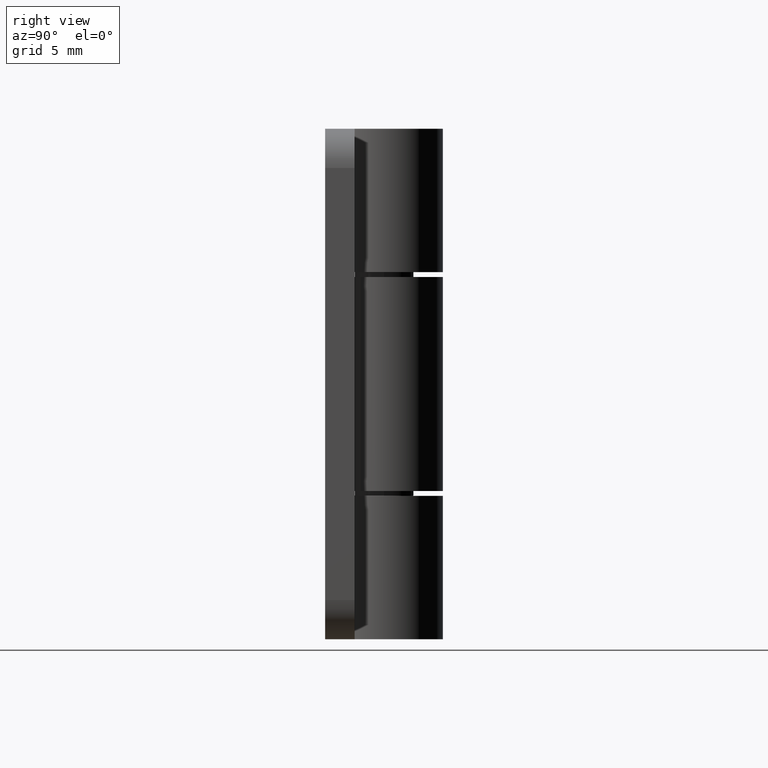
[diagram: clean part render]
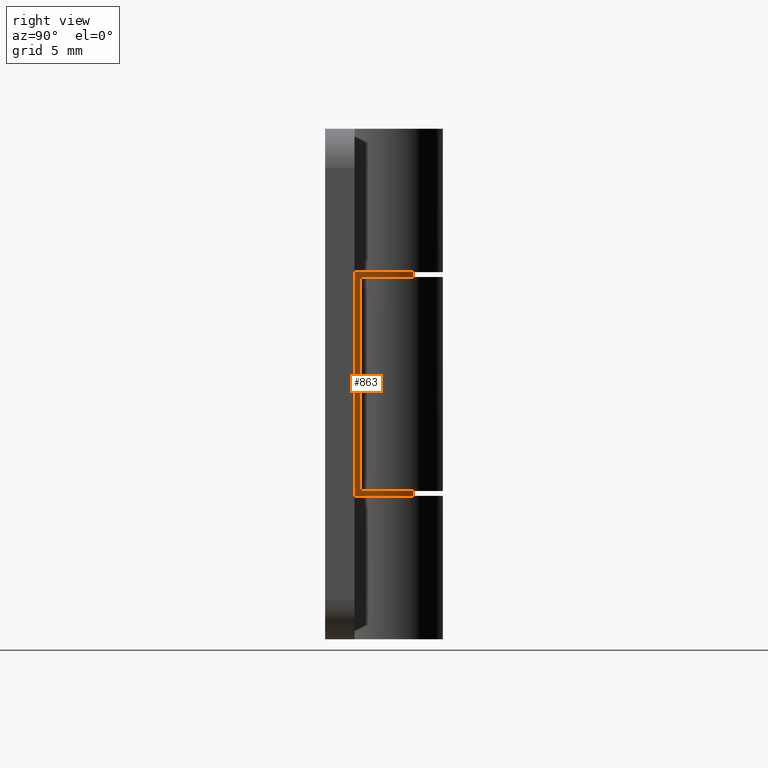
[diagram: same view with one face highlighted and labeled with its STEP entity id]
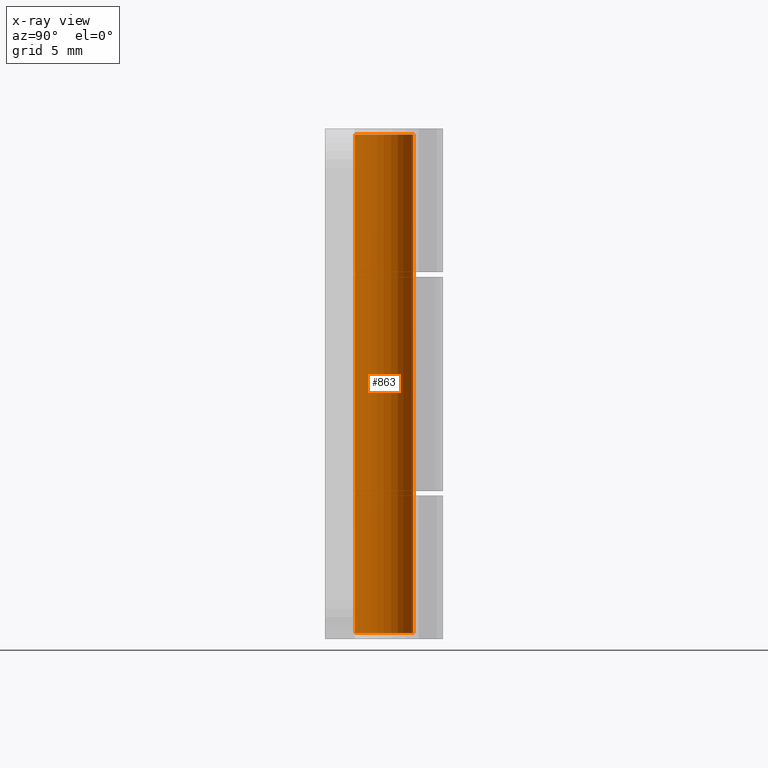
[diagram: x-ray of the same camera — body ghosted, the highlighted face saturated]
A machine part, right view. The second image highlights one B-rep face of the part: STEP entity #863.
The next image is the same camera in x-ray: the body ghosted, the highlighted face saturated — about 0% of this face is hidden behind the body in this view.
In plain terms, the highlighted cylindrical surface (bore or boss wall) has radius 1.5 mm, axis along (0, -0, 1).
Its self-contained STEP definition (entity closure, byte-faithful):
#64=FACE_BOUND('',#200,.T.);
#133=FACE_OUTER_BOUND('',#199,.T.);
#199=EDGE_LOOP('',(#791));
#200=EDGE_LOOP('',(#792));
#377=CIRCLE('',#962,1.5);
#379=CIRCLE('',#965,1.5);
#457=VERTEX_POINT('',#1478);
#459=VERTEX_POINT('',#1483);
#569=EDGE_CURVE('',#457,#457,#377,.T.);
#571=EDGE_CURVE('',#459,#459,#379,.T.);
#791=ORIENTED_EDGE('',*,*,#569,.F.);
#792=ORIENTED_EDGE('',*,*,#571,.F.);
#817=CYLINDRICAL_SURFACE('',#964,1.5);
#863=ADVANCED_FACE('',(#133,#64),#817,.T.);
#962=AXIS2_PLACEMENT_3D('',#1479,#1222,#1223);
#964=AXIS2_PLACEMENT_3D('',#1482,#1226,#1227);
#965=AXIS2_PLACEMENT_3D('',#1484,#1228,#1229);
#1222=DIRECTION('center_axis',(0.,0.,-1.));
#1223=DIRECTION('ref_axis',(-1.,0.,0.));
#1226=DIRECTION('center_axis',(0.,0.,1.));
#1227=DIRECTION('ref_axis',(1.,0.,0.));
#1228=DIRECTION('center_axis',(0.,0.,1.));
#1229=DIRECTION('ref_axis',(-1.,0.,0.));
#1478=CARTESIAN_POINT('',(-1.5,-1.83697019872103E-16,-12.7));
#1479=CARTESIAN_POINT('Origin',(0.,0.,-12.7));
#1482=CARTESIAN_POINT('Origin',(0.,0.,0.));
#1483=CARTESIAN_POINT('',(1.5,1.83697019872103E-16,12.7));
#1484=CARTESIAN_POINT('Origin',(0.,0.,12.7));